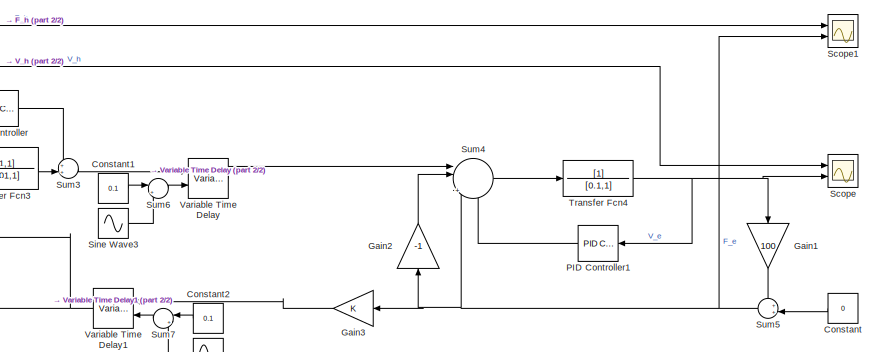
[diagram: root canvas - part 1/2, right side, full height]
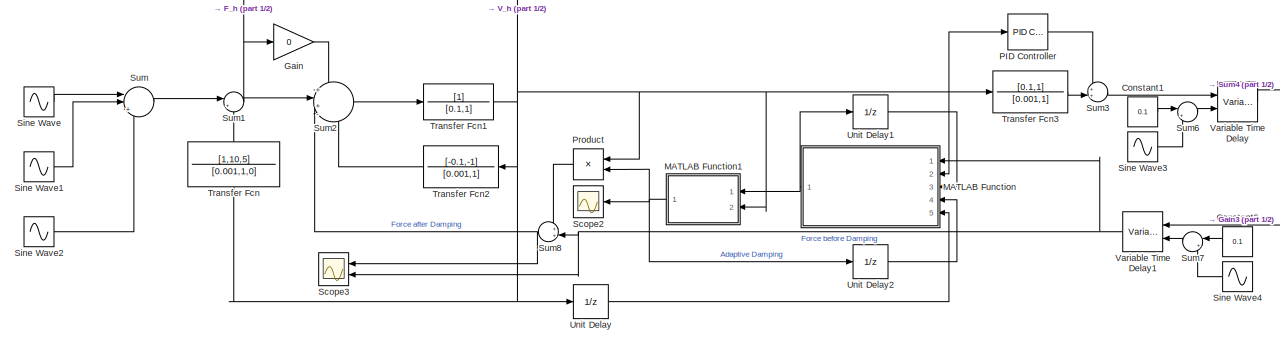
[diagram: root canvas - part 2/2, center side, full height]
MODEL slx_0b6e6bdfd04b
KIND model
CONFIG AbsTol = auto
CONFIG EnableMultiTasking = off
CONFIG FixedStep = 0.0001
CONFIG MaxStep = auto
CONFIG MinStep = auto
CONFIG RelTol = 1e-3
CONFIG SampleTimeConstraint = Unconstrained
CONFIG Solver = ode4
CONFIG SolverName = ode4
CONFIG StartTime = 0.0
CONFIG StopTime = 20
BLOCK [Constant] Constant
  Value = 0
BLOCK [Constant] Constant1
  Value = 0.1
BLOCK [Constant] Constant2
  Value = 0.1
BLOCK [Gain] Gain
  Gain = 0
BLOCK [Gain] Gain1
  Gain = 100
  NameLocation = left
BLOCK [Gain] Gain2
  Gain = -1
  NameLocation = left
BLOCK [Gain] Gain3
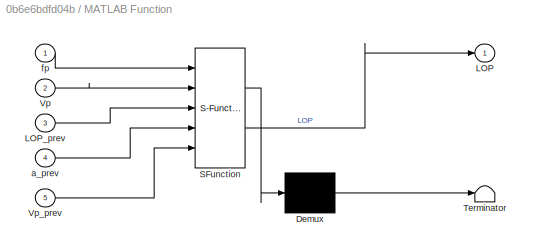
BLOCK [SubSystem] MATLAB Function
  ErrorFcn = Stateflow.Translate.translate
  PermitHierarchicalResolution = ExplicitOnly
  Ports = [5, 1]
  RequestExecContextInheritance = off
  SFBlockType = MATLAB Function
  TreatAsAtomicUnit = on
BLOCK [Demux] MATLAB Function/ Demux 
  Outputs = 1
  Ports = [1, 1]
BLOCK [S-Function] MATLAB Function/ SFunction 
  EnableBusSupport = on
  FunctionName = sf_sfun
  PortCounts = [5 2]
  Ports = [5, 2]
  SFcnIsStateOwnerBlock = off
  SFunctionDeploymentMode = off
  Tag = Stateflow S-Function 2
BLOCK [Terminator] MATLAB Function/ Terminator 
BLOCK [Outport] MATLAB Function/LOP
BLOCK [Inport] MATLAB Function/LOP_prev
  Port = 3
BLOCK [Inport] MATLAB Function/Vp
  Port = 2
BLOCK [Inport] MATLAB Function/Vp_prev
  Port = 5
BLOCK [Inport] MATLAB Function/a_prev
  Port = 4
BLOCK [Inport] MATLAB Function/fp
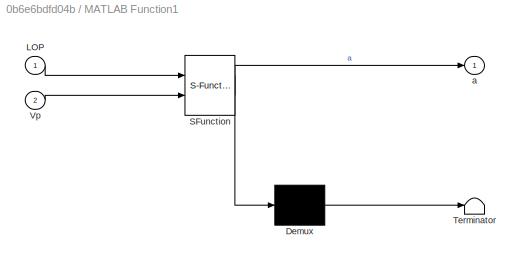
BLOCK [SubSystem] MATLAB Function1
  ErrorFcn = Stateflow.Translate.translate
  PermitHierarchicalResolution = ExplicitOnly
  Ports = [2, 1]
  RequestExecContextInheritance = off
  SFBlockType = MATLAB Function
  TreatAsAtomicUnit = on
BLOCK [Demux] MATLAB Function1/ Demux 
  Outputs = 1
  Ports = [1, 1]
BLOCK [S-Function] MATLAB Function1/ SFunction 
  EnableBusSupport = on
  FunctionName = sf_sfun
  PortCounts = [2 2]
  Ports = [2, 2]
  SFcnIsStateOwnerBlock = off
  SFunctionDeploymentMode = off
  Tag = Stateflow S-Function 1
BLOCK [Terminator] MATLAB Function1/ Terminator 
BLOCK [Inport] MATLAB Function1/LOP
BLOCK [Inport] MATLAB Function1/Vp
  Port = 2
BLOCK [Outport] MATLAB Function1/a
BLOCK [Reference] PID Controller  REF=simulink/Continuous/PID Controller
  Ports = [1, 1]
  SourceBlock = simulink/Continuous/PID Controller
  SourceProductBaseCode = SL
  SourceType = PID 1dof
BLOCK [Reference] PID Controller1  REF=simulink/Continuous/PID Controller
  Ports = [1, 1]
  SourceBlock = simulink/Continuous/PID Controller
  SourceProductBaseCode = SL
  SourceType = PID 1dof
BLOCK [Product] Product
  Ports = [2, 1]
BLOCK [Scope] Scope
  Floating = off
  NumInputPorts = 2
  Ports = [2]
  ScopeSpecificationString = Simulink.scopes.TimeScopeBlockCfg('CurrentConfiguration', extmgr.ConfigurationSet(extmgr.Configuration('Core','General UI',true),extmgr.Configuration('Core','Source UI',true),extmgr.Configuration('Sources','WiredSimulink',true),extmgr.Configuration('Visuals','Time Domain',true,'SerializedDisplays',{struct('MinYLimReal','-0.19842','MaxYLimReal','0.18192','YLabelReal','','MinYLimMag','0.00000','MaxY...<+1398ch>
BLOCK [Scope] Scope1
  Floating = off
  NumInputPorts = 2
  Ports = [2]
  ScopeSpecificationString = Simulink.scopes.TimeScopeBlockCfg('CurrentConfiguration', extmgr.ConfigurationSet(extmgr.Configuration('Core','General UI',true),extmgr.Configuration('Core','Source UI',true),extmgr.Configuration('Sources','WiredSimulink',true,'DataLoggingVariableName','ScopeData1'),extmgr.Configuration('Visuals','Time Domain',true,'SerializedDisplays',{struct('MinYLimReal','-17.83892','MaxYLimReal','17.10152','YL...<+1443ch>
BLOCK [Scope] Scope2
  Floating = off
  NumInputPorts = 1
  Ports = [1]
  ScopeSpecificationString = Simulink.scopes.TimeScopeBlockCfg('CurrentConfiguration', extmgr.ConfigurationSet(extmgr.Configuration('Core','General UI',true),extmgr.Configuration('Core','Source UI',true),extmgr.Configuration('Sources','WiredSimulink',true,'DataLoggingVariableName','ScopeData1'),extmgr.Configuration('Visuals','Time Domain',true,'SerializedDisplays',{struct('MinYLimReal','-1717288.58457','MaxYLimReal','15455597...<+1423ch>
BLOCK [Scope] Scope3
  Floating = off
  NumInputPorts = 2
  Ports = [2]
  ScopeSpecificationString = Simulink.scopes.TimeScopeBlockCfg('CurrentConfiguration', extmgr.ConfigurationSet(extmgr.Configuration('Core','General UI',true),extmgr.Configuration('Core','Source UI',true),extmgr.Configuration('Sources','WiredSimulink',true,'DataLoggingVariableName','ScopeData2'),extmgr.Configuration('Visuals','Time Domain',true,'SerializedDisplays',{struct('MinYLimReal','-18.17849','MaxYLimReal','19.7528','YLa...<+1401ch>
BLOCK [Sin] Sine Wave
  Frequency = 2
  Ports = [0, 1]
  SampleTime = 0
BLOCK [Sin] Sine Wave1
  Amplitude = 0.25
  Frequency = 6
  Phase = pi/2
  Ports = [0, 1]
  SampleTime = 0
BLOCK [Sin] Sine Wave2
  Amplitude = 0.1
  Frequency = 18
  Ports = [0, 1]
  SampleTime = 0
BLOCK [Sin] Sine Wave3
  Amplitude = 0.02
  Frequency = 12
  Ports = [0, 1]
  SampleTime = 0
BLOCK [Sin] Sine Wave4
  Amplitude = 0.02
  Frequency = 12
  Ports = [0, 1]
  SampleTime = 0
BLOCK [Sum] Sum
  Inputs = ||+++
  Ports = [3, 1]
BLOCK [Sum] Sum1
  Inputs = |+-
  Ports = [2, 1]
BLOCK [Sum] Sum2
  Inputs = +|+--
  Ports = [4, 1]
BLOCK [Sum] Sum3
  Inputs = ++|
  Ports = [2, 1]
BLOCK [Sum] Sum4
  Inputs = |||+---
  Ports = [4, 1]
BLOCK [Sum] Sum5
  Inputs = ++|
  Ports = [2, 1]
BLOCK [Sum] Sum6
  Inputs = |++
  Ports = [2, 1]
BLOCK [Sum] Sum7
  Inputs = |++
  Ports = [2, 1]
BLOCK [Sum] Sum8
  Inputs = ++|
  Ports = [2, 1]
BLOCK [TransferFcn] Transfer Fcn
  Denominator = [0.001,1,0]
  NameLocation = right
  Numerator = [1,10,5]
BLOCK [TransferFcn] Transfer Fcn1
  Denominator = [0.1,1]
BLOCK [TransferFcn] Transfer Fcn2
  Denominator = [0.001,1]
  Numerator = [-0.1,-1]
BLOCK [TransferFcn] Transfer Fcn3
  Denominator = [0.001,1]
  Numerator = [0.1,1]
BLOCK [TransferFcn] Transfer Fcn4
  Denominator = [0.1,1]
BLOCK [UnitDelay] Unit Delay
  HasFrameUpgradeWarning = on
  SampleTime = 0.0001
BLOCK [UnitDelay] Unit Delay1
  HasFrameUpgradeWarning = on
  SampleTime = 0.0001
BLOCK [UnitDelay] Unit Delay2
  HasFrameUpgradeWarning = on
  SampleTime = 0.0001
BLOCK [VariableTransportDelay] Variable Time Delay
  MaximumDelay = 10
  MaximumPoints = 2048
  Ports = [2, 1]
BLOCK [VariableTransportDelay] Variable Time Delay1
  MaximumDelay = 10
  MaximumPoints = 2048
  Ports = [2, 1]
LINE Constant1:1 -> Sum6:1
LINE Constant2:1 -> Sum7:1
LINE Constant:1 -> Sum5:2
LINE Gain1:1 -> Sum5:1
LINE Gain2:1 -> Sum4:2
LINE Gain3:1 -> Variable Time Delay1:1
LINE Gain:1 -> Sum2:1
NET MATLAB Function1:1 -> Product:2, Scope2:1, Unit Delay2:1
NET MATLAB Function:1 -> MATLAB Function1:1, Unit Delay1:1
LINE PID Controller1:1 -> Sum4:4
LINE PID Controller:1 -> Sum3:1
LINE Product:1 -> Sum8:1
LINE Sine Wave1:1 -> Sum:2
LINE Sine Wave2:1 -> Sum:3
LINE Sine Wave3:1 -> Sum6:2
LINE Sine Wave4:1 -> Sum7:2
LINE Sine Wave:1 -> Sum:1
NET Sum1:1 -> Gain:1, Scope1:1, Sum2:2
LINE Sum2:1 -> Transfer Fcn1:1
LINE Sum3:1 -> Variable Time Delay:1
LINE Sum4:1 -> Transfer Fcn4:1
NET Sum5:1 -> Gain2:1, Gain3:1, Scope1:2, Sum4:3
LINE Sum6:1 -> Variable Time Delay:2
LINE Sum7:1 -> Variable Time Delay1:2
NET Sum8:1 -> Scope3:1, Sum2:3
LINE Sum:1 -> Sum1:1
NET Transfer Fcn1:1 -> MATLAB Function1:2, MATLAB Function:2, PID Controller:1, Product:1, Scope:1, Transfer Fcn2:1, Transfer Fcn3:1, Transfer Fcn:1, Unit Delay:1
LINE Transfer Fcn2:1 -> Sum2:4
LINE Transfer Fcn3:1 -> Sum3:2
NET Transfer Fcn4:1 -> Gain1:1, PID Controller1:1, Scope:2
LINE Transfer Fcn:1 -> Sum1:2
LINE Unit Delay1:1 -> MATLAB Function:3
LINE Unit Delay2:1 -> MATLAB Function:4
LINE Unit Delay:1 -> MATLAB Function:5
NET Variable Time Delay1:1 -> MATLAB Function:1, Scope3:2, Sum8:2
LINE Variable Time Delay:1 -> Sum4:1
note: NET lines group one-source signal fan-out (src -> all destinations, sorted); 1:1 wires keep LINE
CHART MATLAB Function1 states=1 transitions=1
  STATE_LABEL 'eML_blk_kernel()'
  STATE_LABEL 'SCRIPT:\nfunction a = Stabilizer(LOP,Vp)\n\ndt = 0.0001;\n\nif LOP < 0\n    if Vp ~= 0\n        a = -LOP/(Vp*Vp*dt);\n    else\n        a = 0; \n    end\nelse\n    a = 0;\nend\n\nend\n'
CHART MATLAB Function states=1 transitions=1
  STATE_LABEL 'eML_blk_kernel()'
  STATE_LABEL 'SCRIPT:\nfunction LOP = PO(fp,Vp,LOP_prev,a_prev,Vp_prev)\n\nf = 0.99;\ndt = 0.0001;\n\nP_L = ( 3 - 0.5 )*Vp*Vp + fp*Vp;\nLOP = f*LOP_prev + (P_L + f*a_prev*Vp_prev*Vp_prev)*dt;\n\nend\n\n'
CHART  states=0 transitions=0
CHART  states=0 transitions=0
